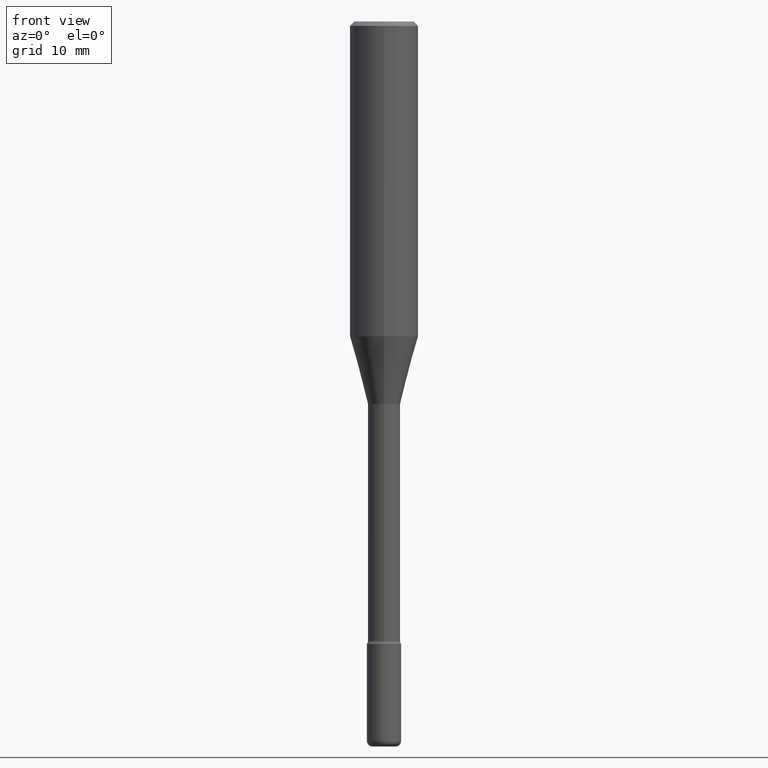
[diagram: clean part render]
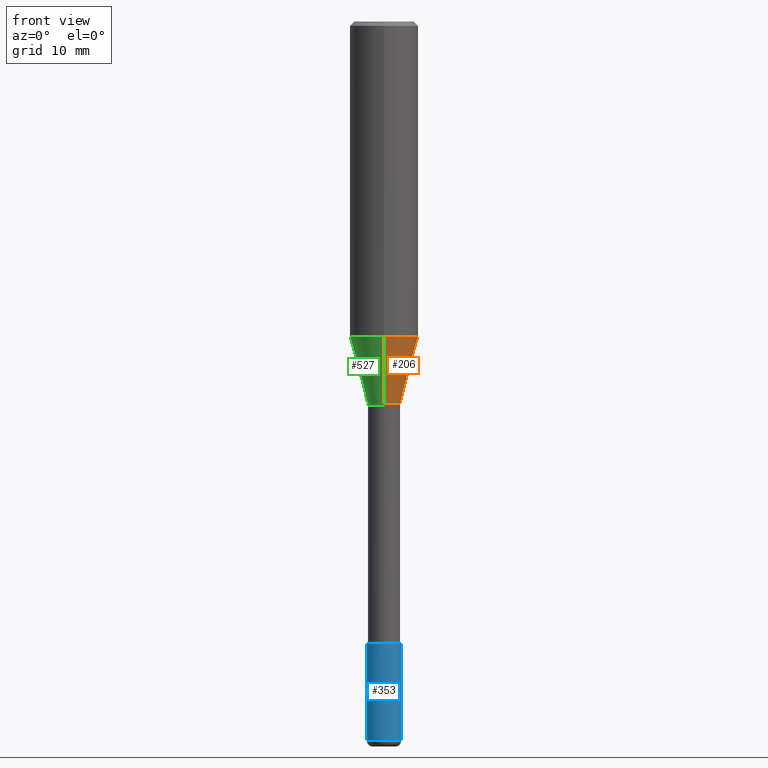
[diagram: same view with three faces highlighted in distinct colors, each labeled with its STEP entity id]
A machine part, front view with three faces highlighted in distinct colors.
Their STEP definitions:

[orange] entity #206 — the highlighted conical surface has half-angle 15 deg.
#25 = DIRECTION ( 'NONE',  ( -2.445314574720221452E-29, 3.491702207079214016E-15, 1.000000000000000000 ) ) ;
#31 = CONICAL_SURFACE ( 'NONE', #176, 0.05601111260566399297, 0.2617993877991499629 ) ;
#47 = VECTOR ( 'NONE', #311, 39.37007874015748854 ) ;
#58 = DIRECTION ( 'NONE',  ( -1.807323732225328167E-15, -0.2588190451025179084, 0.9659258262890690894 ) ) ;
#81 = FACE_OUTER_BOUND ( 'NONE', #328, .T. ) ;
#103 = CIRCLE ( 'NONE', #191, 0.05601111260566399297 ) ;
#108 = ORIENTED_EDGE ( 'NONE', *, *, #497, .T. ) ;
#118 = ORIENTED_EDGE ( 'NONE', *, *, #473, .F. ) ;
#154 = CARTESIAN_POINT ( 'NONE',  ( 2.653835399191132044E-29, -3.789452292305104081E-15, -1.085273619446188720 ) ) ;
#156 = DIRECTION ( 'NONE',  ( -6.982962677686265922E-15, -1.000000000000000000, 3.469747663417777397E-15 ) ) ;
#175 = DIRECTION ( 'NONE',  ( -6.982962677686265922E-15, -1.000000000000000000, 4.877332133888037765E-15 ) ) ;
#176 = AXIS2_PLACEMENT_3D ( 'NONE', #386, #483, #175 ) ;
#191 = AXIS2_PLACEMENT_3D ( 'NONE', #377, #25, #548 ) ;
#206 = ADVANCED_FACE ( 'NONE', ( #81 ), #31, .T. ) ;
#221 = EDGE_CURVE ( 'NONE', #243, #266, #486, .T. ) ;
#230 = CARTESIAN_POINT ( 'NONE',  ( -8.246878922347212441E-16, -0.1181000000000037714, -1.085273619446188276 ) ) ;
#243 = VERTEX_POINT ( 'NONE', #436 ) ;
#266 = VERTEX_POINT ( 'NONE', #346 ) ;
#273 = LINE ( 'NONE', #456, #319 ) ;
#291 = DIRECTION ( 'NONE',  ( -2.445314574720221452E-29, 3.491702207079214016E-15, 1.000000000000000000 ) ) ;
#303 = AXIS2_PLACEMENT_3D ( 'NONE', #154, #291, #156 ) ;
#311 = DIRECTION ( 'NONE',  ( 1.839019923739597949E-15, 0.2588190451025246253, 0.9659258262890670910 ) ) ;
#319 = VECTOR ( 'NONE', #58, 39.37007874015748143 ) ;
#328 = EDGE_LOOP ( 'NONE', ( #108, #443, #118, #569 ) ) ;
#346 = CARTESIAN_POINT ( 'NONE',  ( 8.391509709327049197E-16, 0.1180999999999962358, -1.085273619446189164 ) ) ;
#373 = VERTEX_POINT ( 'NONE', #498 ) ;
#377 = CARTESIAN_POINT ( 'NONE',  ( 3.220460959417665931E-29, -4.598545625197397204E-15, -1.316992501787273007 ) ) ;
#386 = CARTESIAN_POINT ( 'NONE',  ( 3.220460959417665931E-29, -4.598545625197397204E-15, -1.316992501787273007 ) ) ;
#398 = VERTEX_POINT ( 'NONE', #230 ) ;
#429 = EDGE_CURVE ( 'NONE', #373, #398, #273, .T. ) ;
#436 = CARTESIAN_POINT ( 'NONE',  ( 6.185669313853460208E-16, 0.05601111260565939248, -1.316992501787273229 ) ) ;
#443 = ORIENTED_EDGE ( 'NONE', *, *, #221, .T. ) ;
#456 = CARTESIAN_POINT ( 'NONE',  ( -3.911235088610021883E-16, -0.05601111260566859346, -1.316992501787272785 ) ) ;
#473 = EDGE_CURVE ( 'NONE', #398, #266, #555, .T. ) ;
#483 = DIRECTION ( 'NONE',  ( -2.445314574720221452E-29, 3.491702207079214016E-15, 1.000000000000000000 ) ) ;
#486 = LINE ( 'NONE', #566, #47 ) ;
#497 = EDGE_CURVE ( 'NONE', #373, #243, #103, .T. ) ;
#498 = CARTESIAN_POINT ( 'NONE',  ( -3.911235088610021883E-16, -0.05601111260566859346, -1.316992501787272785 ) ) ;
#548 = DIRECTION ( 'NONE',  ( -6.982962677686265922E-15, -1.000000000000000000, 4.877332133888037765E-15 ) ) ;
#555 = CIRCLE ( 'NONE', #303, 0.1180999999999999966 ) ;
#566 = CARTESIAN_POINT ( 'NONE',  ( 3.979828918379874177E-16, 0.05601111260565939248, -1.316992501787273229 ) ) ;
#569 = ORIENTED_EDGE ( 'NONE', *, *, #429, .F. ) ;

[blue] entity #353 — the highlighted cylindrical surface (edge-blend (fillet) strip) has radius 1.4999 mm, axis along (-0, 0, 1).
#16 = FACE_OUTER_BOUND ( 'NONE', #50, .T. ) ;
#17 = ORIENTED_EDGE ( 'NONE', *, *, #286, .T. ) ;
#20 = CARTESIAN_POINT ( 'NONE',  ( 5.247242417431447608E-29, -7.491671508755737816E-15, -2.145700000000000163 ) ) ;
#21 = EDGE_CURVE ( 'NONE', #136, #329, #30, .T. ) ;
#26 = EDGE_CURVE ( 'NONE', #561, #329, #260, .T. ) ;
#30 = LINE ( 'NONE', #411, #276 ) ;
#39 = CARTESIAN_POINT ( 'NONE',  ( 0.05905000000000008159, -9.072265110850027889E-15, -2.480300000000000171 ) ) ;
#50 = EDGE_LOOP ( 'NONE', ( #294, #17, #305, #313 ) ) ;
#75 = DIRECTION ( 'NONE',  ( -2.445468806185136877E-29, 3.491481338843145188E-15, 1.000000000000000000 ) ) ;
#76 = EDGE_CURVE ( 'NONE', #440, #561, #554, .T. ) ;
#97 = DIRECTION ( 'NONE',  ( 1.000000000000000000, -6.982962677686266711E-15, 4.876176775795936353E-29 ) ) ;
#111 = CARTESIAN_POINT ( 'NONE',  ( -0.05904999999999999832, -7.656220851277857871E-15, -2.145700000000000163 ) ) ;
#112 = CARTESIAN_POINT ( 'NONE',  ( -0.05904999999999999832, 4.195754854663391478E-16, -2.904631170795521892E-30 ) ) ;
#136 = VERTEX_POINT ( 'NONE', #39 ) ;
#159 = DIRECTION ( 'NONE',  ( -2.445468806185136597E-29, 3.491481338843145583E-15, 1.000000000000000000 ) ) ;
#171 = DIRECTION ( 'NONE',  ( 1.000000000000000000, -6.982962677686273021E-15, 0.000000000000000000 ) ) ;
#185 = AXIS2_PLACEMENT_3D ( 'NONE', #20, #159, #372 ) ;
#234 = CYLINDRICAL_SURFACE ( 'NONE', #448, 0.05904999999999999832 ) ;
#260 = CIRCLE ( 'NONE', #185, 0.05904999999999999832 ) ;
#269 = CIRCLE ( 'NONE', #343, 0.05904999999999999832 ) ;
#276 = VECTOR ( 'NONE', #75, 39.37007874015748143 ) ;
#286 = EDGE_CURVE ( 'NONE', #440, #136, #269, .T. ) ;
#294 = ORIENTED_EDGE ( 'NONE', *, *, #76, .F. ) ;
#305 = ORIENTED_EDGE ( 'NONE', *, *, #21, .T. ) ;
#313 = ORIENTED_EDGE ( 'NONE', *, *, #26, .F. ) ;
#315 = VECTOR ( 'NONE', #378, 39.37007874015748143 ) ;
#329 = VERTEX_POINT ( 'NONE', #534 ) ;
#330 = CARTESIAN_POINT ( 'NONE',  ( -0.05905000000000008159, -8.240345679266315842E-15, -2.480300000000000171 ) ) ;
#343 = AXIS2_PLACEMENT_3D ( 'NONE', #571, #389, #171 ) ;
#353 = ADVANCED_FACE ( 'NONE', ( #16 ), #234, .T. ) ;
#372 = DIRECTION ( 'NONE',  ( 1.000000000000000000, -6.982962677686273021E-15, 0.000000000000000000 ) ) ;
#378 = DIRECTION ( 'NONE',  ( -2.445468806185136877E-29, 3.491481338843145188E-15, 1.000000000000000000 ) ) ;
#389 = DIRECTION ( 'NONE',  ( -2.445468806185136597E-29, 3.491481338843145583E-15, 1.000000000000000000 ) ) ;
#405 = DIRECTION ( 'NONE',  ( -2.445468806185136597E-29, 3.491481338843145583E-15, 1.000000000000000000 ) ) ;
#411 = CARTESIAN_POINT ( 'NONE',  ( 0.05904999999999999832, -4.123439461173740327E-16, 2.879382386107500220E-30 ) ) ;
#440 = VERTEX_POINT ( 'NONE', #330 ) ;
#448 = AXIS2_PLACEMENT_3D ( 'NONE', #492, #405, #97 ) ;
#492 = CARTESIAN_POINT ( 'NONE',  ( 0.000000000000000000, 0.000000000000000000, 0.000000000000000000 ) ) ;
#534 = CARTESIAN_POINT ( 'NONE',  ( 0.05904999999999999832, -7.904015454873111947E-15, -2.145700000000000163 ) ) ;
#554 = LINE ( 'NONE', #112, #315 ) ;
#561 = VERTEX_POINT ( 'NONE', #111 ) ;
#571 = CARTESIAN_POINT ( 'NONE',  ( 6.065496279980994755E-29, -8.659921164732655335E-15, -2.480300000000000171 ) ) ;

[green] entity #527 — the highlighted conical surface has half-angle 15 deg.
#33 = ORIENTED_EDGE ( 'NONE', *, *, #91, .F. ) ;
#35 = CARTESIAN_POINT ( 'NONE',  ( 3.220460959417665931E-29, -4.598545625197397204E-15, -1.316992501787273007 ) ) ;
#47 = VECTOR ( 'NONE', #311, 39.37007874015748854 ) ;
#58 = DIRECTION ( 'NONE',  ( -1.807323732225328167E-15, -0.2588190451025179084, 0.9659258262890690894 ) ) ;
#60 = FACE_OUTER_BOUND ( 'NONE', #198, .T. ) ;
#72 = DIRECTION ( 'NONE',  ( -2.445314574720221452E-29, 3.491702207079214016E-15, 1.000000000000000000 ) ) ;
#77 = CIRCLE ( 'NONE', #380, 0.1180999999999999966 ) ;
#91 = EDGE_CURVE ( 'NONE', #266, #398, #77, .T. ) ;
#122 = DIRECTION ( 'NONE',  ( -6.982962677686265922E-15, -1.000000000000000000, 4.877332133888037765E-15 ) ) ;
#146 = EDGE_CURVE ( 'NONE', #243, #373, #333, .T. ) ;
#157 = DIRECTION ( 'NONE',  ( -6.982962677686265922E-15, -1.000000000000000000, 3.469747663417777397E-15 ) ) ;
#198 = EDGE_LOOP ( 'NONE', ( #433, #361, #307, #33 ) ) ;
#208 = AXIS2_PLACEMENT_3D ( 'NONE', #35, #518, #122 ) ;
#221 = EDGE_CURVE ( 'NONE', #243, #266, #486, .T. ) ;
#230 = CARTESIAN_POINT ( 'NONE',  ( -8.246878922347212441E-16, -0.1181000000000037714, -1.085273619446188276 ) ) ;
#243 = VERTEX_POINT ( 'NONE', #436 ) ;
#266 = VERTEX_POINT ( 'NONE', #346 ) ;
#273 = LINE ( 'NONE', #456, #319 ) ;
#307 = ORIENTED_EDGE ( 'NONE', *, *, #429, .T. ) ;
#311 = DIRECTION ( 'NONE',  ( 1.839019923739597949E-15, 0.2588190451025246253, 0.9659258262890670910 ) ) ;
#319 = VECTOR ( 'NONE', #58, 39.37007874015748143 ) ;
#333 = CIRCLE ( 'NONE', #208, 0.05601111260566399297 ) ;
#340 = AXIS2_PLACEMENT_3D ( 'NONE', #457, #72, #506 ) ;
#346 = CARTESIAN_POINT ( 'NONE',  ( 8.391509709327049197E-16, 0.1180999999999962358, -1.085273619446189164 ) ) ;
#361 = ORIENTED_EDGE ( 'NONE', *, *, #146, .T. ) ;
#373 = VERTEX_POINT ( 'NONE', #498 ) ;
#376 = CONICAL_SURFACE ( 'NONE', #340, 0.05601111260566399297, 0.2617993877991499629 ) ;
#380 = AXIS2_PLACEMENT_3D ( 'NONE', #507, #558, #157 ) ;
#398 = VERTEX_POINT ( 'NONE', #230 ) ;
#429 = EDGE_CURVE ( 'NONE', #373, #398, #273, .T. ) ;
#433 = ORIENTED_EDGE ( 'NONE', *, *, #221, .F. ) ;
#436 = CARTESIAN_POINT ( 'NONE',  ( 6.185669313853460208E-16, 0.05601111260565939248, -1.316992501787273229 ) ) ;
#456 = CARTESIAN_POINT ( 'NONE',  ( -3.911235088610021883E-16, -0.05601111260566859346, -1.316992501787272785 ) ) ;
#457 = CARTESIAN_POINT ( 'NONE',  ( 3.220460959417665931E-29, -4.598545625197397204E-15, -1.316992501787273007 ) ) ;
#486 = LINE ( 'NONE', #566, #47 ) ;
#498 = CARTESIAN_POINT ( 'NONE',  ( -3.911235088610021883E-16, -0.05601111260566859346, -1.316992501787272785 ) ) ;
#506 = DIRECTION ( 'NONE',  ( -6.982962677686265922E-15, -1.000000000000000000, 4.877332133888037765E-15 ) ) ;
#507 = CARTESIAN_POINT ( 'NONE',  ( 2.653835399191132044E-29, -3.789452292305104081E-15, -1.085273619446188720 ) ) ;
#518 = DIRECTION ( 'NONE',  ( -2.445314574720221452E-29, 3.491702207079214016E-15, 1.000000000000000000 ) ) ;
#527 = ADVANCED_FACE ( 'NONE', ( #60 ), #376, .T. ) ;
#558 = DIRECTION ( 'NONE',  ( -2.445314574720221452E-29, 3.491702207079214016E-15, 1.000000000000000000 ) ) ;
#566 = CARTESIAN_POINT ( 'NONE',  ( 3.979828918379874177E-16, 0.05601111260565939248, -1.316992501787273229 ) ) ;